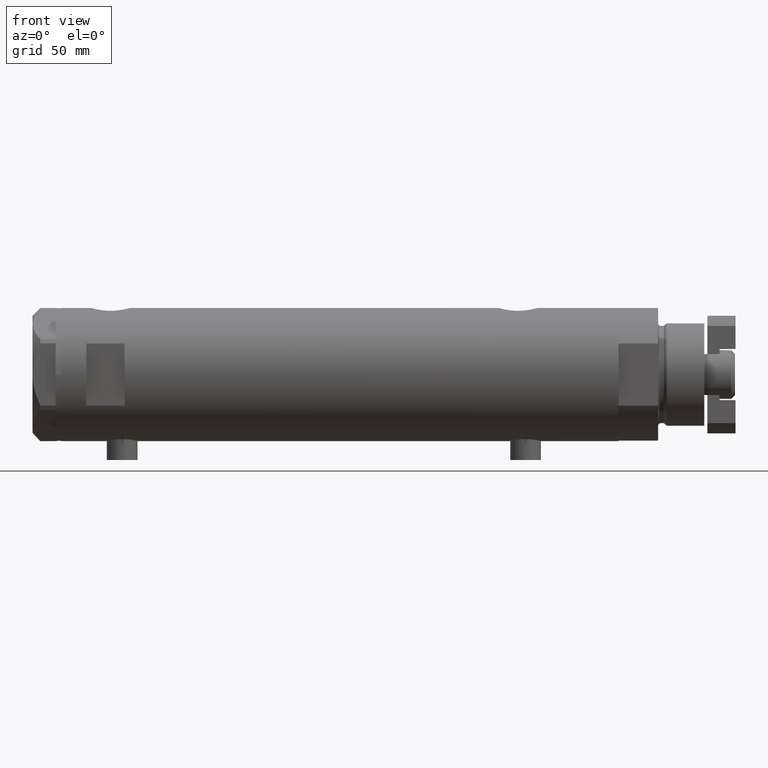
[diagram: clean part render]
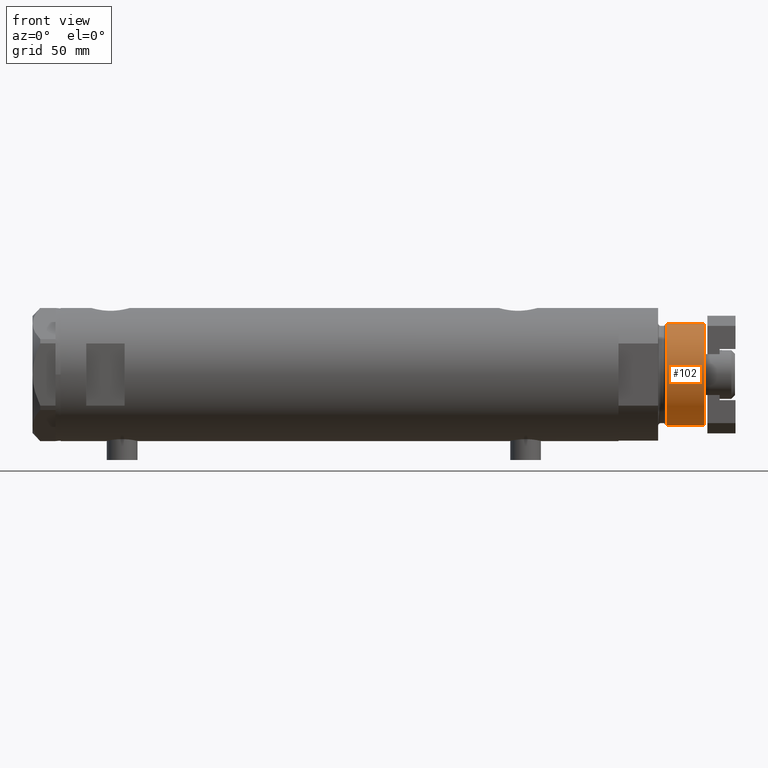
[diagram: same view with one face highlighted and labeled with its STEP entity id]
A machine part, front view. The second image highlights one B-rep face of the part: STEP entity #102.
In plain terms, the highlighted cylindrical surface (partial cylindrical patch) has radius 20 mm, axis along (-1, -0, 0).
Its self-contained STEP definition (entity closure, byte-faithful):
#62 = VERTEX_POINT ( 'NONE', #532 ) ;
#102 = ADVANCED_FACE ( 'NONE', ( #2346 ), #3980, .T. ) ;
#177 = CIRCLE ( 'NONE', #645, 19.99999999999999645 ) ;
#233 = CARTESIAN_POINT ( 'NONE',  ( 19.99999999999999645, 2.449293598294706119E-15, 33.50000000000000000 ) ) ;
#310 = AXIS2_PLACEMENT_3D ( 'NONE', #348, #319, #5148 ) ;
#319 = DIRECTION ( 'NONE',  ( 0.000000000000000000, 0.000000000000000000, 1.000000000000000000 ) ) ;
#348 = CARTESIAN_POINT ( 'NONE',  ( 0.000000000000000000, 0.000000000000000000, 33.50000000000000000 ) ) ;
#522 = CARTESIAN_POINT ( 'NONE',  ( 19.99999999999999645, 2.449293598294706119E-15, 18.87384048104053846 ) ) ;
#532 = CARTESIAN_POINT ( 'NONE',  ( 19.99999999999999645, 2.449293598294706119E-15, 33.50000000000000000 ) ) ;
#578 = DIRECTION ( 'NONE',  ( 1.000000000000000000, 0.000000000000000000, 0.000000000000000000 ) ) ;
#645 = AXIS2_PLACEMENT_3D ( 'NONE', #2720, #4448, #578 ) ;
#668 = LINE ( 'NONE', #2391, #4719 ) ;
#702 = DIRECTION ( 'NONE',  ( -0.000000000000000000, -0.000000000000000000, -1.000000000000000000 ) ) ;
#779 = EDGE_LOOP ( 'NONE', ( #1956, #1157, #3840, #1122 ) ) ;
#1122 = ORIENTED_EDGE ( 'NONE', *, *, #5582, .T. ) ;
#1157 = ORIENTED_EDGE ( 'NONE', *, *, #3707, .F. ) ;
#1197 = EDGE_CURVE ( 'NONE', #2269, #1784, #668, .T. ) ;
#1508 = LINE ( 'NONE', #233, #3247 ) ;
#1512 = DIRECTION ( 'NONE',  ( -1.000000000000000000, 0.000000000000000000, 0.000000000000000000 ) ) ;
#1784 = VERTEX_POINT ( 'NONE', #5090 ) ;
#1914 = DIRECTION ( 'NONE',  ( -0.000000000000000000, -0.000000000000000000, -1.000000000000000000 ) ) ;
#1956 = ORIENTED_EDGE ( 'NONE', *, *, #4641, .F. ) ;
#2269 = VERTEX_POINT ( 'NONE', #4970 ) ;
#2346 = FACE_OUTER_BOUND ( 'NONE', #779, .T. ) ;
#2391 = CARTESIAN_POINT ( 'NONE',  ( -19.99999999999999645, 0.000000000000000000, 33.50000000000000000 ) ) ;
#2720 = CARTESIAN_POINT ( 'NONE',  ( 0.000000000000000000, 0.000000000000000000, 18.87384048104053846 ) ) ;
#3130 = CARTESIAN_POINT ( 'NONE',  ( 0.000000000000000000, 0.000000000000000000, 33.50000000000000000 ) ) ;
#3247 = VECTOR ( 'NONE', #702, 1000.000000000000000 ) ;
#3658 = CIRCLE ( 'NONE', #310, 19.99999999999999645 ) ;
#3707 = EDGE_CURVE ( 'NONE', #2269, #62, #3658, .T. ) ;
#3840 = ORIENTED_EDGE ( 'NONE', *, *, #1197, .T. ) ;
#3980 = CYLINDRICAL_SURFACE ( 'NONE', #4173, 19.99999999999999645 ) ;
#4173 = AXIS2_PLACEMENT_3D ( 'NONE', #3130, #1914, #1512 ) ;
#4448 = DIRECTION ( 'NONE',  ( -0.000000000000000000, -0.000000000000000000, 1.000000000000000000 ) ) ;
#4614 = DIRECTION ( 'NONE',  ( -0.000000000000000000, -0.000000000000000000, -1.000000000000000000 ) ) ;
#4641 = EDGE_CURVE ( 'NONE', #62, #5580, #1508, .T. ) ;
#4719 = VECTOR ( 'NONE', #4614, 1000.000000000000000 ) ;
#4970 = CARTESIAN_POINT ( 'NONE',  ( -19.99999999999999645, 0.000000000000000000, 33.50000000000000000 ) ) ;
#5090 = CARTESIAN_POINT ( 'NONE',  ( -19.99999999999999645, 0.000000000000000000, 18.87384048104053846 ) ) ;
#5148 = DIRECTION ( 'NONE',  ( 1.000000000000000000, 0.000000000000000000, 0.000000000000000000 ) ) ;
#5580 = VERTEX_POINT ( 'NONE', #522 ) ;
#5582 = EDGE_CURVE ( 'NONE', #1784, #5580, #177, .T. ) ;